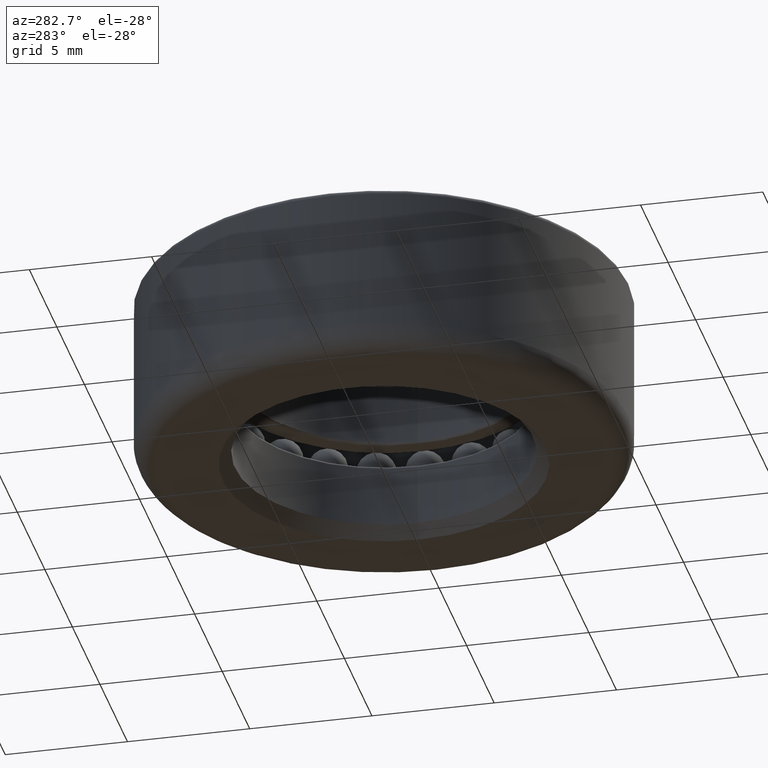
[diagram: clean part render]
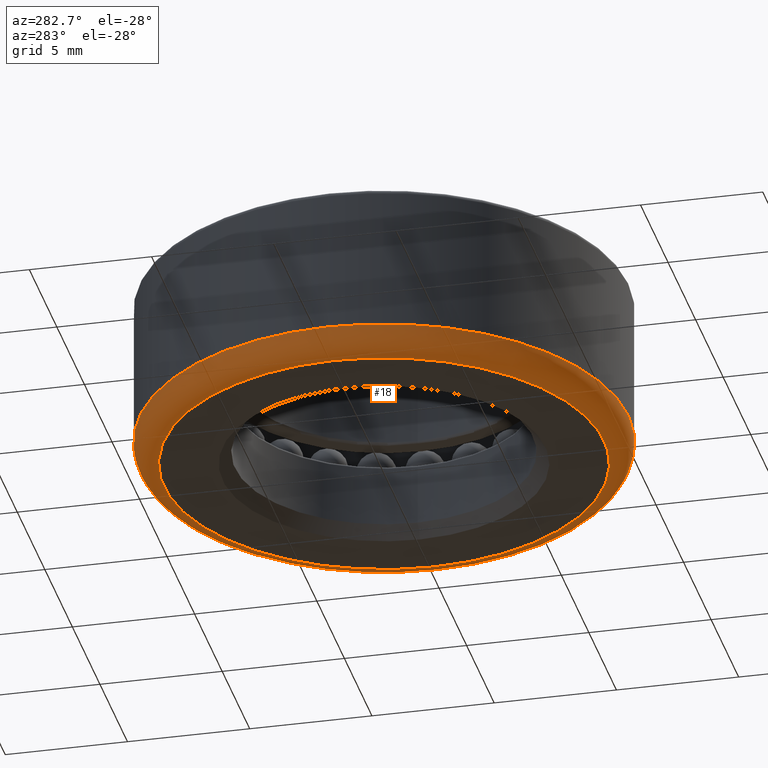
[diagram: same view with one face highlighted and labeled with its STEP entity id]
A machine part, auxiliary view. The second image highlights one B-rep face of the part: STEP entity #18.
In plain terms, the highlighted toroidal blend (fillet) surface has major radius 9 mm and minor (blend) radius 1 mm.
Its self-contained STEP definition (entity closure, byte-faithful):
#18 = ADVANCED_FACE ( 'NONE', ( #698, #218 ), #560, .T. ) ;
#60 = AXIS2_PLACEMENT_3D ( 'NONE', #574, #690, #90 ) ;
#90 = DIRECTION ( 'NONE',  ( 1.000000000000000000, 0.0000000000000000000, 0.0000000000000000000 ) ) ;
#105 = CARTESIAN_POINT ( 'NONE',  ( 10.00000000000000000, 0.0000000000000000000, -2.600000000000000100 ) ) ;
#218 = FACE_OUTER_BOUND ( 'NONE', #756, .T. ) ;
#247 = DIRECTION ( 'NONE',  ( 1.000000000000000000, 0.0000000000000000000, 0.0000000000000000000 ) ) ;
#256 = DIRECTION ( 'NONE',  ( 1.000000000000000000, 0.0000000000000000000, 0.0000000000000000000 ) ) ;
#266 = ORIENTED_EDGE ( 'NONE', *, *, #356, .F. ) ;
#314 = EDGE_CURVE ( 'NONE', #540, #540, #612, .T. ) ;
#319 = AXIS2_PLACEMENT_3D ( 'NONE', #550, #553, #256 ) ;
#356 = EDGE_CURVE ( 'NONE', #446, #446, #707, .T. ) ;
#384 = ORIENTED_EDGE ( 'NONE', *, *, #314, .F. ) ;
#446 = VERTEX_POINT ( 'NONE', #105 ) ;
#478 = CARTESIAN_POINT ( 'NONE',  ( 9.000000000000001800, 0.0000000000000000000, -3.600000000000000100 ) ) ;
#540 = VERTEX_POINT ( 'NONE', #478 ) ;
#550 = CARTESIAN_POINT ( 'NONE',  ( 0.0000000000000000000, 0.0000000000000000000, -3.600000000000000100 ) ) ;
#553 = DIRECTION ( 'NONE',  ( 0.0000000000000000000, 0.0000000000000000000, -1.000000000000000000 ) ) ;
#554 = CARTESIAN_POINT ( 'NONE',  ( 0.0000000000000000000, 0.0000000000000000000, -2.600000000000000100 ) ) ;
#560 = TOROIDAL_SURFACE ( 'NONE', #60, 9.000000000000001800, 1.000000000000000000 ) ;
#574 = CARTESIAN_POINT ( 'NONE',  ( 0.0000000000000000000, 0.0000000000000000000, -2.600000000000000100 ) ) ;
#577 = EDGE_LOOP ( 'NONE', ( #384 ) ) ;
#612 = CIRCLE ( 'NONE', #319, 9.000000000000001800 ) ;
#690 = DIRECTION ( 'NONE',  ( -0.0000000000000000000, -0.0000000000000000000, 1.000000000000000000 ) ) ;
#698 = FACE_OUTER_BOUND ( 'NONE', #577, .T. ) ;
#707 = CIRCLE ( 'NONE', #711, 10.00000000000000000 ) ;
#711 = AXIS2_PLACEMENT_3D ( 'NONE', #554, #727, #247 ) ;
#727 = DIRECTION ( 'NONE',  ( -0.0000000000000000000, -0.0000000000000000000, 1.000000000000000000 ) ) ;
#756 = EDGE_LOOP ( 'NONE', ( #266 ) ) ;